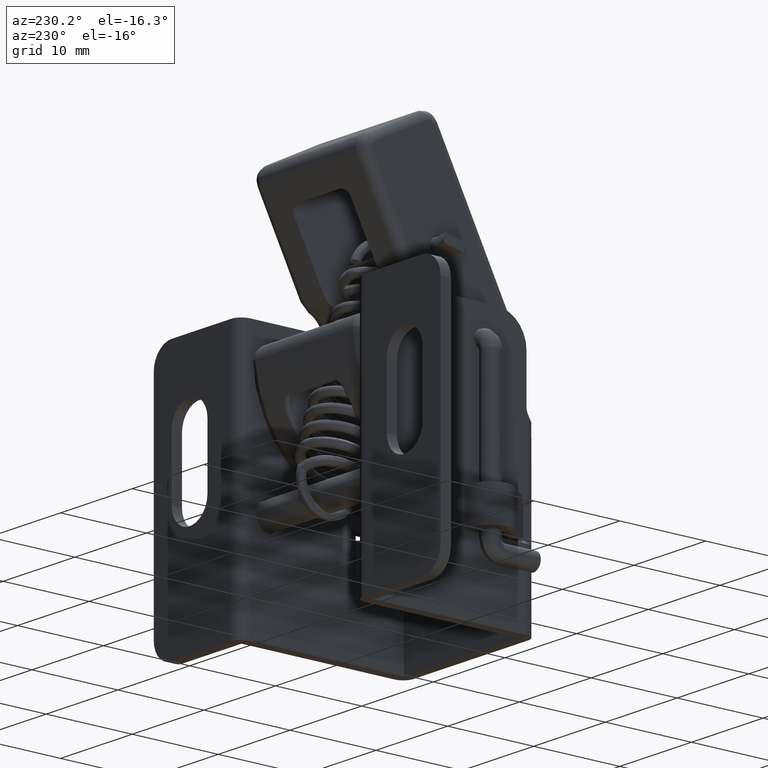
[diagram: clean part render]
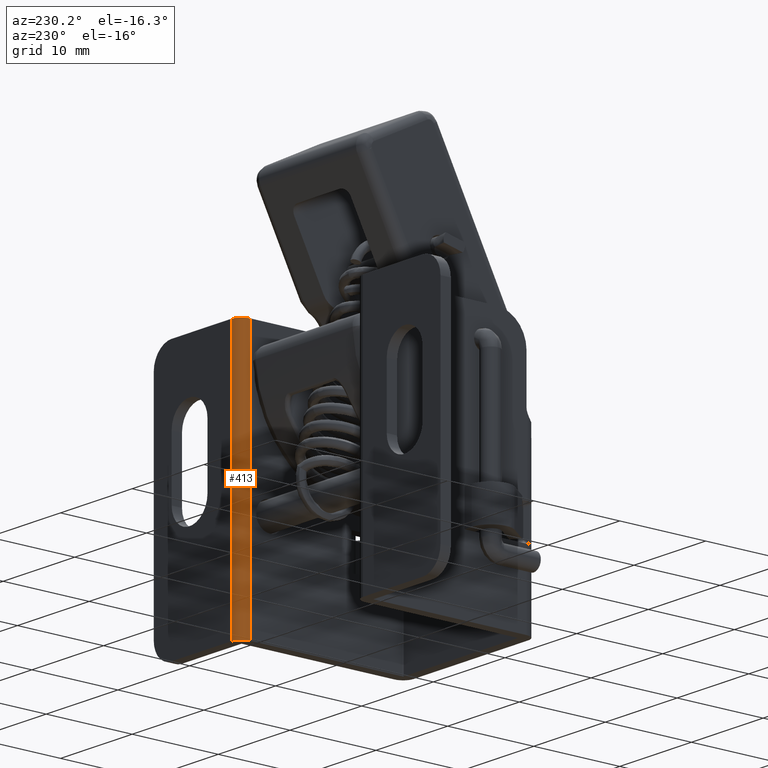
[diagram: same view with one face highlighted and labeled with its STEP entity id]
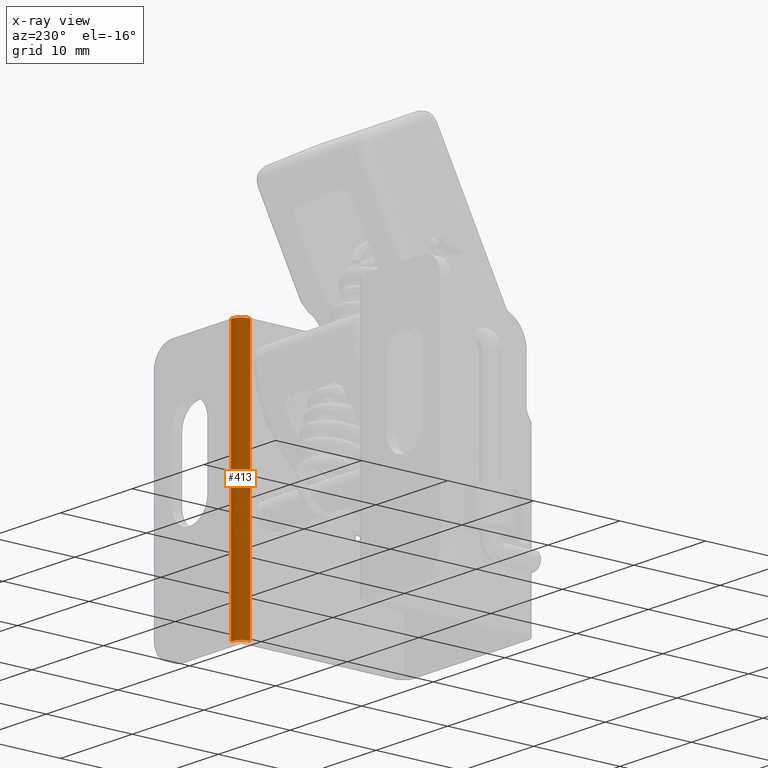
[diagram: x-ray of the same camera — body ghosted, the highlighted face saturated]
A machine part, auxiliary view. The second image highlights one B-rep face of the part: STEP entity #413.
The next image is the same camera in x-ray: the body ghosted, the highlighted face saturated — about 0% of this face is hidden behind the body in this view.
In plain terms, the highlighted cylindrical surface (edge-blend (fillet) strip) has radius 1.2 mm, axis along (0, 0, -1).
Its self-contained STEP definition (entity closure, byte-faithful):
#413=ADVANCED_FACE('',(#1782),#1781,.T.);
#1781=CYLINDRICAL_SURFACE('',#4846,1.20000000000E+00);
#1782=FACE_OUTER_BOUND('',#4847,.T.);
#4843=CARTESIAN_POINT('',(2.41999840000E+01,-1.20000000000E+00,-3.00000000000E+00));
#4844=DIRECTION('',(-0.00000000000E+00,0.00000000000E+00,-1.00000000000E+00));
#4845=DIRECTION('',(-1.00000000000E+00,-0.00000000000E+00,-0.00000000000E+00));
#4846=AXIS2_PLACEMENT_3D('',#4843,#4844,#4845);
#4847=EDGE_LOOP('',(#11488,#11489,#11490,#11491));
#11488=ORIENTED_EDGE('',*,*,#12775,.F.);
#11489=ORIENTED_EDGE('',*,*,#12780,.F.);
#11490=ORIENTED_EDGE('',*,*,#12693,.F.);
#11491=ORIENTED_EDGE('',*,*,#12810,.F.);
#12693=EDGE_CURVE('',#14783,#14790,#14791,.T.);
#12775=EDGE_CURVE('',#15330,#15337,#15338,.T.);
#12780=EDGE_CURVE('',#14790,#15330,#15370,.T.);
#12810=EDGE_CURVE('',#15337,#14783,#15565,.T.);
#14783=VERTEX_POINT('',#19528);
#14790=VERTEX_POINT('',#19532);
#14791=CIRCLE('',#19536,1.20000000000E+00);
#15330=VERTEX_POINT('',#19867);
#15337=VERTEX_POINT('',#19871);
#15338=CIRCLE('',#19875,1.20000000000E+00);
#15370=LINE('',#19891,#19892);
#15565=LINE('',#20004,#20005);
#19528=CARTESIAN_POINT('',(2.29999840000E+01,-1.20000000000E+00,-1.80000000000E+01));
#19532=CARTESIAN_POINT('',(2.41999840000E+01,0.00000000000E+00,-1.80000000000E+01));
#19533=CARTESIAN_POINT('',(2.41999840000E+01,-1.20000000000E+00,-1.80000000000E+01));
#19534=DIRECTION('',(0.00000000000E+00,0.00000000000E+00,-1.00000000000E+00));
#19535=DIRECTION('',(1.00000000000E+00,-0.00000000000E+00,-0.00000000000E+00));
#19536=AXIS2_PLACEMENT_3D('',#19533,#19534,#19535);
#19867=CARTESIAN_POINT('',(2.41999840000E+01,0.00000000000E+00,1.20000000000E+01));
#19871=CARTESIAN_POINT('',(2.29999840000E+01,-1.20000000000E+00,1.20000000000E+01));
#19872=CARTESIAN_POINT('',(2.41999840000E+01,-1.20000000000E+00,1.20000000000E+01));
#19873=DIRECTION('',(0.00000000000E+00,-0.00000000000E+00,1.00000000000E+00));
#19874=DIRECTION('',(-0.00000000000E+00,-1.00000000000E+00,-0.00000000000E+00));
#19875=AXIS2_PLACEMENT_3D('',#19872,#19873,#19874);
#19891=CARTESIAN_POINT('',(2.41999840000E+01,0.00000000000E+00,-1.80000000000E+01));
#19892=VECTOR('',#19893,3.00000000000E+01);
#19893=DIRECTION('',(0.00000000000E+00,0.00000000000E+00,1.00000000000E+00));
#20004=CARTESIAN_POINT('',(2.29999840000E+01,-1.20000000000E+00,1.20000000000E+01));
#20005=VECTOR('',#20006,3.00000000000E+01);
#20006=DIRECTION('',(0.00000000000E+00,0.00000000000E+00,-1.00000000000E+00));